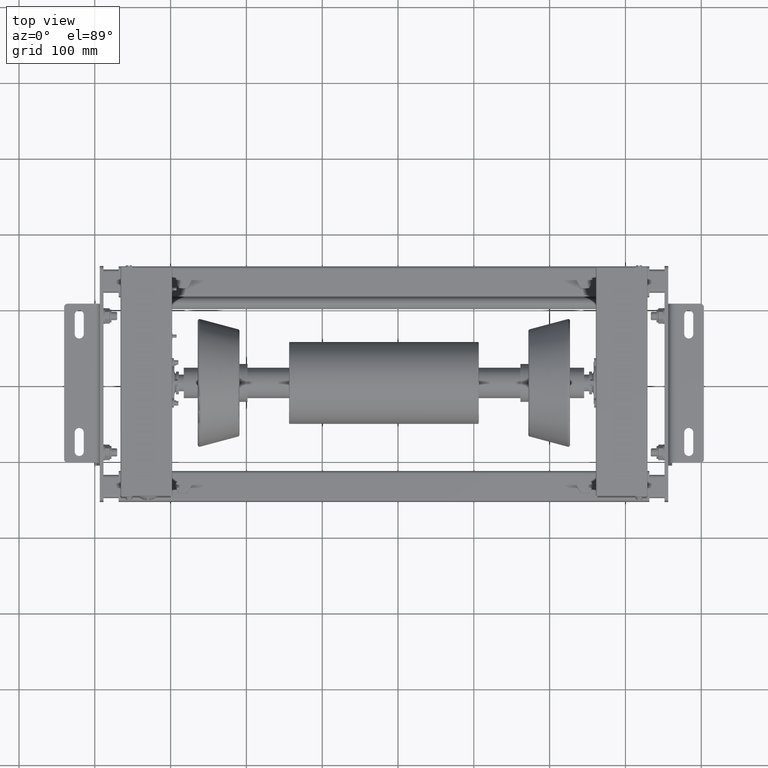
[diagram: clean part render]
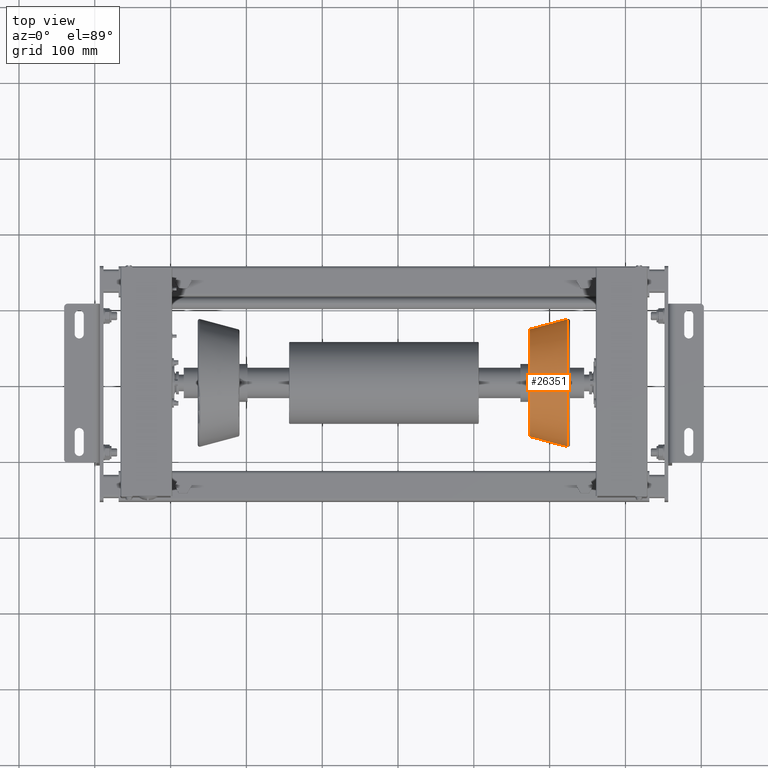
[diagram: same view with one face highlighted and labeled with its STEP entity id]
A machine part, top view. The second image highlights one B-rep face of the part: STEP entity #26351.
In plain terms, the highlighted conical surface has half-angle 15 deg.
Its self-contained STEP definition (entity closure, byte-faithful):
#26168=CARTESIAN_POINT('',(-25.647047612756236,-77.009291512063584,-8.665514E-015));
#26169=VERTEX_POINT('',#26168);
#26177=CARTESIAN_POINT('',(-25.647047612756232,-6.250000000000009,70.759291512063584));
#26178=VERTEX_POINT('',#26177);
#26179=CARTESIAN_POINT('',(-25.647047612756232,-6.250000000000000,0.0));
#26180=DIRECTION('',(-1.0,0.0,0.0));
#26181=DIRECTION('',(0.0,-1.0,0.0));
#26182=AXIS2_PLACEMENT_3D('',#26179,#26180,#26181);
#26183=CIRCLE('',#26182,70.759291512063584);
#26184=EDGE_CURVE('',#26169,#26178,#26183,.T.);
#26210=CARTESIAN_POINT('',(24.352952387243700,77.906751133619665,0.0));
#26211=VERTEX_POINT('',#26210);
#26212=CARTESIAN_POINT('',(-25.647047612756232,64.509291512063584,0.0));
#26213=VERTEX_POINT('',#26212);
#26214=CARTESIAN_POINT('',(24.352952387243700,77.906751133619665,0.0));
#26215=DIRECTION('',(-0.965925826289069,-0.258819045102520,0.0));
#26216=VECTOR('',#26215,51.763809020504063);
#26217=LINE('',#26214,#26216);
#26218=EDGE_CURVE('',#26211,#26213,#26217,.T.);
#26229=CARTESIAN_POINT('',(24.352952387243707,-90.406751133619665,-1.030623E-014));
#26230=VERTEX_POINT('',#26229);
#26238=CARTESIAN_POINT('',(24.352952387243707,-90.406751133619665,-1.030623E-014));
#26239=DIRECTION('',(-0.965925826289068,0.258819045102520,3.169619E-017));
#26240=VECTOR('',#26239,51.763809020504084);
#26241=LINE('',#26238,#26240);
#26242=EDGE_CURVE('',#26230,#26169,#26241,.T.);
#26278=CARTESIAN_POINT('',(24.352952387243704,-6.250000000000011,84.156751133619665));
#26279=VERTEX_POINT('',#26278);
#26287=CARTESIAN_POINT('',(24.352952387243700,-6.250000000000000,0.0));
#26288=DIRECTION('',(1.0,0.0,0.0));
#26289=DIRECTION('',(0.0,-1.0,0.0));
#26290=AXIS2_PLACEMENT_3D('',#26287,#26288,#26289);
#26291=CIRCLE('',#26290,84.156751133619665);
#26292=EDGE_CURVE('',#26279,#26230,#26291,.T.);
#26305=CARTESIAN_POINT('',(24.352952387243700,-6.250000000000000,0.0));
#26306=DIRECTION('',(1.0,0.0,0.0));
#26307=DIRECTION('',(0.0,-1.0,0.0));
#26308=AXIS2_PLACEMENT_3D('',#26305,#26306,#26307);
#26309=CIRCLE('',#26308,84.156751133619665);
#26310=EDGE_CURVE('',#26211,#26279,#26309,.T.);
#26332=CARTESIAN_POINT('',(7.105427E-014,-6.250000000000000,0.0));
#26333=DIRECTION('',(1.0,0.0,0.0));
#26334=DIRECTION('',(0.0,1.0,0.0));
#26335=AXIS2_PLACEMENT_3D('',#26332,#26333,#26334);
#26336=CONICAL_SURFACE('',#26335,77.631397208144165,14.999999999999964);
#26337=ORIENTED_EDGE('',*,*,#26218,.T.);
#26338=CARTESIAN_POINT('',(-25.647047612756232,-6.250000000000000,0.0));
#26339=DIRECTION('',(-1.0,0.0,0.0));
#26340=DIRECTION('',(0.0,-1.0,0.0));
#26341=AXIS2_PLACEMENT_3D('',#26338,#26339,#26340);
#26342=CIRCLE('',#26341,70.759291512063584);
#26343=EDGE_CURVE('',#26178,#26213,#26342,.T.);
#26344=ORIENTED_EDGE('',*,*,#26343,.F.);
#26345=ORIENTED_EDGE('',*,*,#26184,.F.);
#26346=ORIENTED_EDGE('',*,*,#26242,.F.);
#26347=ORIENTED_EDGE('',*,*,#26292,.F.);
#26348=ORIENTED_EDGE('',*,*,#26310,.F.);
#26349=EDGE_LOOP('',(#26337,#26344,#26345,#26346,#26347,#26348));
#26350=FACE_OUTER_BOUND('',#26349,.T.);
#26351=ADVANCED_FACE('',(#26350),#26336,.T.);